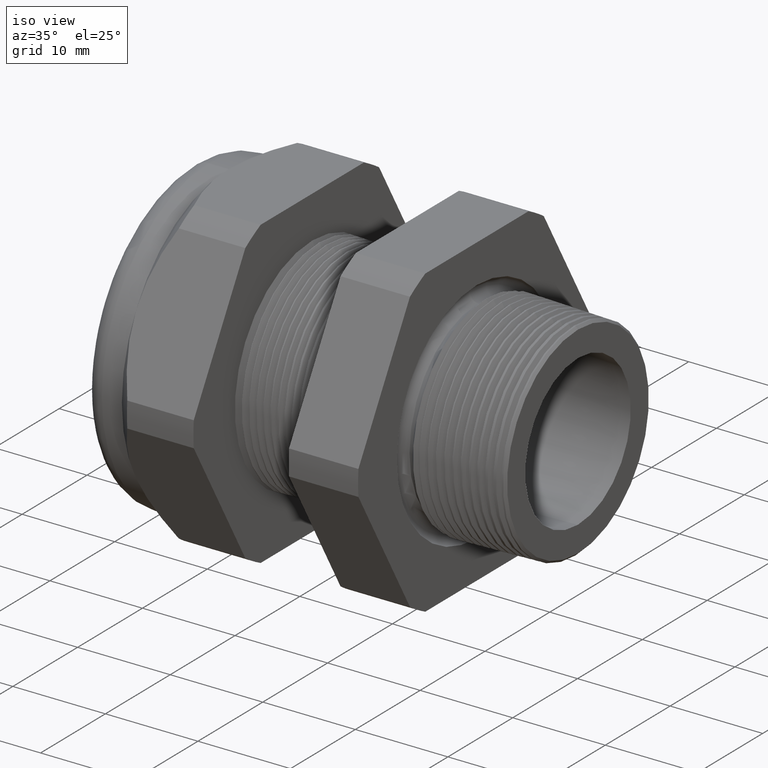
[diagram: clean part render]
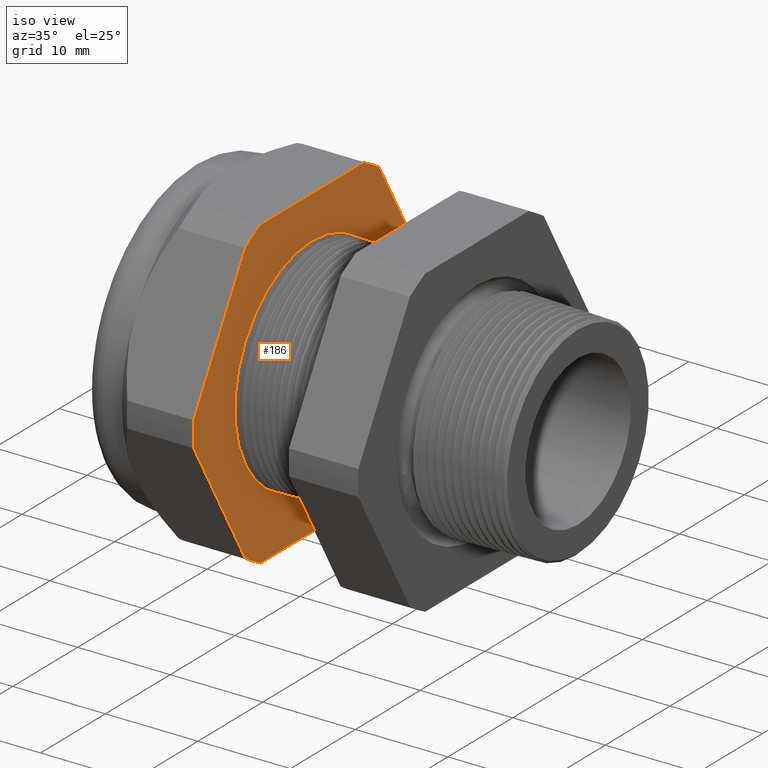
[diagram: same view with one face highlighted and labeled with its STEP entity id]
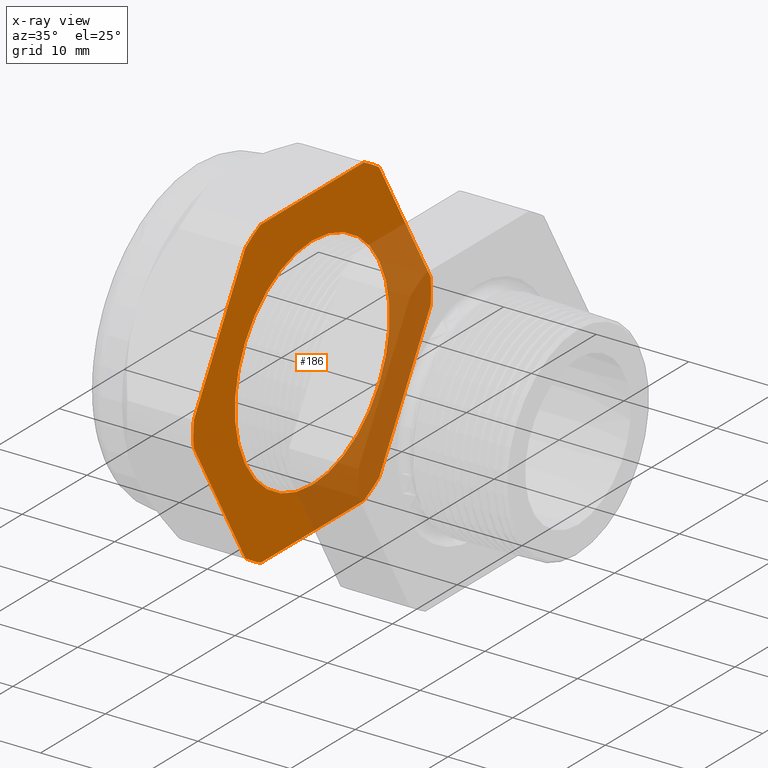
[diagram: x-ray of the same camera — body ghosted, the highlighted face saturated]
A machine part, iso view. The second image highlights one B-rep face of the part: STEP entity #186.
The next image is the same camera in x-ray: the body ghosted, the highlighted face saturated — about 36% of this face is hidden behind the body in this view.
In plain terms, the highlighted planar face has unit normal (1, 0, 0).
Its self-contained STEP definition (entity closure, byte-faithful):
#60 = VERTEX_POINT ( 'NONE', #1773 ) ;
#144 = ORIENTED_EDGE ( 'NONE', *, *, #721, .T. ) ;
#145 = ORIENTED_EDGE ( 'NONE', *, *, #712, .T. ) ;
#156 = ORIENTED_EDGE ( 'NONE', *, *, #159, .F. ) ;
#159 = EDGE_CURVE ( 'NONE', #423, #426, #1917, .T. ) ;
#164 = ORIENTED_EDGE ( 'NONE', *, *, #413, .F. ) ;
#165 = ORIENTED_EDGE ( 'NONE', *, *, #768, .T. ) ;
#166 = EDGE_LOOP ( 'NONE', ( #165, #144, #145, #227, #224, #223, #220, #218, #221, #213, #190, #187 ) ) ;
#173 = EDGE_LOOP ( 'NONE', ( #156, #164 ) ) ;
#178 = VERTEX_POINT ( 'NONE', #1961 ) ;
#186 = ADVANCED_FACE ( 'NONE', ( #2005, #2004 ), #2009, .T. ) ;
#187 = ORIENTED_EDGE ( 'NONE', *, *, #601, .T. ) ;
#190 = ORIENTED_EDGE ( 'NONE', *, *, #628, .T. ) ;
#213 = ORIENTED_EDGE ( 'NONE', *, *, #632, .T. ) ;
#218 = ORIENTED_EDGE ( 'NONE', *, *, #645, .T. ) ;
#220 = ORIENTED_EDGE ( 'NONE', *, *, #642, .T. ) ;
#221 = ORIENTED_EDGE ( 'NONE', *, *, #638, .T. ) ;
#223 = ORIENTED_EDGE ( 'NONE', *, *, #669, .T. ) ;
#224 = ORIENTED_EDGE ( 'NONE', *, *, #684, .T. ) ;
#227 = ORIENTED_EDGE ( 'NONE', *, *, #699, .T. ) ;
#413 = EDGE_CURVE ( 'NONE', #426, #423, #2407, .T. ) ;
#423 = VERTEX_POINT ( 'NONE', #2446 ) ;
#426 = VERTEX_POINT ( 'NONE', #2445 ) ;
#601 = EDGE_CURVE ( 'NONE', #178, #60, #2710, .T. ) ;
#606 = VERTEX_POINT ( 'NONE', #2761 ) ;
#626 = VERTEX_POINT ( 'NONE', #2784 ) ;
#628 = EDGE_CURVE ( 'NONE', #771, #178, #2771, .T. ) ;
#632 = EDGE_CURVE ( 'NONE', #606, #771, #2817, .T. ) ;
#638 = EDGE_CURVE ( 'NONE', #626, #606, #2807, .T. ) ;
#642 = EDGE_CURVE ( 'NONE', #652, #644, #2858, .T. ) ;
#644 = VERTEX_POINT ( 'NONE', #2854 ) ;
#645 = EDGE_CURVE ( 'NONE', #644, #626, #2852, .T. ) ;
#652 = VERTEX_POINT ( 'NONE', #2836 ) ;
#660 = VERTEX_POINT ( 'NONE', #2885 ) ;
#665 = VERTEX_POINT ( 'NONE', #2876 ) ;
#669 = EDGE_CURVE ( 'NONE', #665, #652, #2915, .T. ) ;
#678 = VERTEX_POINT ( 'NONE', #2903 ) ;
#684 = EDGE_CURVE ( 'NONE', #660, #665, #2887, .T. ) ;
#694 = VERTEX_POINT ( 'NONE', #2966 ) ;
#699 = EDGE_CURVE ( 'NONE', #678, #660, #2959, .T. ) ;
#712 = EDGE_CURVE ( 'NONE', #694, #678, #3002, .T. ) ;
#721 = EDGE_CURVE ( 'NONE', #776, #694, #2986, .T. ) ;
#768 = EDGE_CURVE ( 'NONE', #60, #776, #3127, .T. ) ;
#771 = VERTEX_POINT ( 'NONE', #3111 ) ;
#776 = VERTEX_POINT ( 'NONE', #3103 ) ;
#1773 = CARTESIAN_POINT ( 'NONE',  ( -1.010314960629921100, 0.4063420493440886800, -0.5961949252843790100 ) ) ;
#1914 = DIRECTION ( 'NONE',  ( 0.0000000000000000000, 0.0000000000000000000, -1.000000000000000000 ) ) ;
#1915 = DIRECTION ( 'NONE',  ( 1.000000000000000000, 0.0000000000000000000, 0.0000000000000000000 ) ) ;
#1916 = AXIS2_PLACEMENT_3D ( 'NONE', #1923, #1915, #1914 ) ;
#1917 = CIRCLE ( 'NONE', #1916, 0.4699999999999999700 ) ;
#1923 = CARTESIAN_POINT ( 'NONE',  ( -1.010314960629921100, 0.0000000000000000000, 0.0000000000000000000 ) ) ;
#1961 = CARTESIAN_POINT ( 'NONE',  ( -1.010314960629921100, 0.3131489262315934100, -0.6500000000000001300 ) ) ;
#2000 = DIRECTION ( 'NONE',  ( 0.0000000000000000000, 0.0000000000000000000, -1.000000000000000000 ) ) ;
#2001 = DIRECTION ( 'NONE',  ( 1.000000000000000000, 0.0000000000000000000, 0.0000000000000000000 ) ) ;
#2002 = CARTESIAN_POINT ( 'NONE',  ( -1.010314960629921100, 0.4699999999999999700, 0.0000000000000000000 ) ) ;
#2003 = AXIS2_PLACEMENT_3D ( 'NONE', #2002, #2001, #2000 ) ;
#2004 = FACE_OUTER_BOUND ( 'NONE', #166, .T. ) ;
#2005 = FACE_BOUND ( 'NONE', #173, .T. ) ;
#2009 = PLANE ( 'NONE',  #2003 ) ;
#2403 = DIRECTION ( 'NONE',  ( 0.0000000000000000000, 0.0000000000000000000, -1.000000000000000000 ) ) ;
#2404 = DIRECTION ( 'NONE',  ( 1.000000000000000000, 0.0000000000000000000, 0.0000000000000000000 ) ) ;
#2405 = CARTESIAN_POINT ( 'NONE',  ( -1.010314960629921100, 0.0000000000000000000, 0.0000000000000000000 ) ) ;
#2406 = AXIS2_PLACEMENT_3D ( 'NONE', #2405, #2404, #2403 ) ;
#2407 = CIRCLE ( 'NONE', #2406, 0.4699999999999999700 ) ;
#2445 = CARTESIAN_POINT ( 'NONE',  ( -1.010314960629921100, 5.755839955992559700E-017, -0.4699999999999999700 ) ) ;
#2446 = CARTESIAN_POINT ( 'NONE',  ( -1.010314960629921100, 0.0000000000000000000, 0.4699999999999999700 ) ) ;
#2706 = DIRECTION ( 'NONE',  ( 0.0000000000000000000, 0.0000000000000000000, -1.000000000000000000 ) ) ;
#2707 = DIRECTION ( 'NONE',  ( 1.000000000000000000, 0.0000000000000000000, 0.0000000000000000000 ) ) ;
#2708 = CARTESIAN_POINT ( 'NONE',  ( -1.010314960629921100, 0.0000000000000000000, 0.0000000000000000000 ) ) ;
#2709 = AXIS2_PLACEMENT_3D ( 'NONE', #2708, #2707, #2706 ) ;
#2710 = CIRCLE ( 'NONE', #2709, 0.7215000000000000300 ) ;
#2761 = CARTESIAN_POINT ( 'NONE',  ( -1.010314960629921100, -0.4063420493440881300, -0.5961949252843793400 ) ) ;
#2768 = DIRECTION ( 'NONE',  ( 0.0000000000000000000, 1.000000000000000000, 0.0000000000000000000 ) ) ;
#2769 = VECTOR ( 'NONE', #2768, 39.37007874015748100 ) ;
#2770 = CARTESIAN_POINT ( 'NONE',  ( -1.010314960629921100, 0.4699999999999999700, -0.6500000000000001300 ) ) ;
#2771 = LINE ( 'NONE', #2770, #2769 ) ;
#2784 = CARTESIAN_POINT ( 'NONE',  ( -1.010314960629921100, -0.7194909755756819800, -0.05380507471562082100 ) ) ;
#2800 = DIRECTION ( 'NONE',  ( 0.0000000000000000000, 0.5000000000000001100, -0.8660254037844386000 ) ) ;
#2801 = VECTOR ( 'NONE', #2800, 39.37007874015748100 ) ;
#2802 = CARTESIAN_POINT ( 'NONE',  ( -1.010314960629921100, -0.4454165124598852300, -0.5285159698893432400 ) ) ;
#2807 = LINE ( 'NONE', #2802, #2801 ) ;
#2813 = DIRECTION ( 'NONE',  ( 0.0000000000000000000, 0.0000000000000000000, -1.000000000000000000 ) ) ;
#2814 = DIRECTION ( 'NONE',  ( 1.000000000000000000, 0.0000000000000000000, 0.0000000000000000000 ) ) ;
#2815 = CARTESIAN_POINT ( 'NONE',  ( -1.010314960629921100, 0.0000000000000000000, 0.0000000000000000000 ) ) ;
#2816 = AXIS2_PLACEMENT_3D ( 'NONE', #2815, #2814, #2813 ) ;
#2817 = CIRCLE ( 'NONE', #2816, 0.7215000000000000300 ) ;
#2836 = CARTESIAN_POINT ( 'NONE',  ( -1.010314960629921100, -0.4063420493440885700, 0.5961949252843791200 ) ) ;
#2848 = DIRECTION ( 'NONE',  ( 0.0000000000000000000, 0.0000000000000000000, -1.000000000000000000 ) ) ;
#2849 = DIRECTION ( 'NONE',  ( 1.000000000000000000, 0.0000000000000000000, 0.0000000000000000000 ) ) ;
#2850 = CARTESIAN_POINT ( 'NONE',  ( -1.010314960629921100, 0.0000000000000000000, 0.0000000000000000000 ) ) ;
#2851 = AXIS2_PLACEMENT_3D ( 'NONE', #2850, #2849, #2848 ) ;
#2852 = CIRCLE ( 'NONE', #2851, 0.7215000000000000300 ) ;
#2854 = CARTESIAN_POINT ( 'NONE',  ( -1.010314960629921100, -0.7194909755756819800, 0.05380507471562025900 ) ) ;
#2855 = DIRECTION ( 'NONE',  ( 0.0000000000000000000, -0.4999999999999995600, -0.8660254037844388200 ) ) ;
#2856 = VECTOR ( 'NONE', #2855, 39.37007874015748900 ) ;
#2857 = CARTESIAN_POINT ( 'NONE',  ( -1.010314960629921100, -0.4454165124598855100, 0.5285159698893426800 ) ) ;
#2858 = LINE ( 'NONE', #2857, #2856 ) ;
#2876 = CARTESIAN_POINT ( 'NONE',  ( -1.010314960629921100, -0.3131489262315937400, 0.6500000000000000200 ) ) ;
#2885 = CARTESIAN_POINT ( 'NONE',  ( -1.010314960629921100, 0.3131489262315937900, 0.6499999999999999100 ) ) ;
#2887 = LINE ( 'NONE', #2902, #2899 ) ;
#2898 = DIRECTION ( 'NONE',  ( 0.0000000000000000000, -1.000000000000000000, 0.0000000000000000000 ) ) ;
#2899 = VECTOR ( 'NONE', #2898, 39.37007874015748100 ) ;
#2902 = CARTESIAN_POINT ( 'NONE',  ( -1.010314960629921100, 0.4699999999999999700, 0.6499999999999999100 ) ) ;
#2903 = CARTESIAN_POINT ( 'NONE',  ( -1.010314960629921100, 0.4063420493440890700, 0.5961949252843787800 ) ) ;
#2911 = DIRECTION ( 'NONE',  ( 0.0000000000000000000, 0.0000000000000000000, -1.000000000000000000 ) ) ;
#2912 = DIRECTION ( 'NONE',  ( 1.000000000000000000, 0.0000000000000000000, 0.0000000000000000000 ) ) ;
#2913 = CARTESIAN_POINT ( 'NONE',  ( -1.010314960629921100, 0.0000000000000000000, 0.0000000000000000000 ) ) ;
#2914 = AXIS2_PLACEMENT_3D ( 'NONE', #2913, #2912, #2911 ) ;
#2915 = CIRCLE ( 'NONE', #2914, 0.7215000000000000300 ) ;
#2955 = DIRECTION ( 'NONE',  ( 0.0000000000000000000, 0.0000000000000000000, -1.000000000000000000 ) ) ;
#2956 = DIRECTION ( 'NONE',  ( 1.000000000000000000, 0.0000000000000000000, 0.0000000000000000000 ) ) ;
#2957 = CARTESIAN_POINT ( 'NONE',  ( -1.010314960629921100, 0.0000000000000000000, 0.0000000000000000000 ) ) ;
#2958 = AXIS2_PLACEMENT_3D ( 'NONE', #2957, #2956, #2955 ) ;
#2959 = CIRCLE ( 'NONE', #2958, 0.7215000000000000300 ) ;
#2966 = CARTESIAN_POINT ( 'NONE',  ( -1.010314960629921100, 0.7194909755756817600, 0.05380507471562173000 ) ) ;
#2982 = DIRECTION ( 'NONE',  ( 0.0000000000000000000, 0.0000000000000000000, -1.000000000000000000 ) ) ;
#2983 = DIRECTION ( 'NONE',  ( 1.000000000000000000, 0.0000000000000000000, 0.0000000000000000000 ) ) ;
#2984 = CARTESIAN_POINT ( 'NONE',  ( -1.010314960629921100, 0.0000000000000000000, 0.0000000000000000000 ) ) ;
#2985 = AXIS2_PLACEMENT_3D ( 'NONE', #2984, #2983, #2982 ) ;
#2986 = CIRCLE ( 'NONE', #2985, 0.7214999999999999200 ) ;
#2999 = DIRECTION ( 'NONE',  ( 0.0000000000000000000, -0.4999999999999998900, 0.8660254037844386000 ) ) ;
#3000 = VECTOR ( 'NONE', #2999, 39.37007874015748100 ) ;
#3001 = CARTESIAN_POINT ( 'NONE',  ( -1.010314960629921100, 0.6804165124598855500, 0.1214840301106571000 ) ) ;
#3002 = LINE ( 'NONE', #3001, #3000 ) ;
#3103 = CARTESIAN_POINT ( 'NONE',  ( -1.010314960629921100, 0.7194909755756818700, -0.05380507471562089000 ) ) ;
#3111 = CARTESIAN_POINT ( 'NONE',  ( -1.010314960629921100, -0.3131489262315934100, -0.6500000000000001300 ) ) ;
#3116 = VECTOR ( 'NONE', #3125, 39.37007874015748900 ) ;
#3125 = DIRECTION ( 'NONE',  ( 0.0000000000000000000, 0.4999999999999996100, 0.8660254037844388200 ) ) ;
#3126 = CARTESIAN_POINT ( 'NONE',  ( -1.010314960629921100, 0.6804165124598852100, -0.1214840301106568700 ) ) ;
#3127 = LINE ( 'NONE', #3126, #3116 ) ;